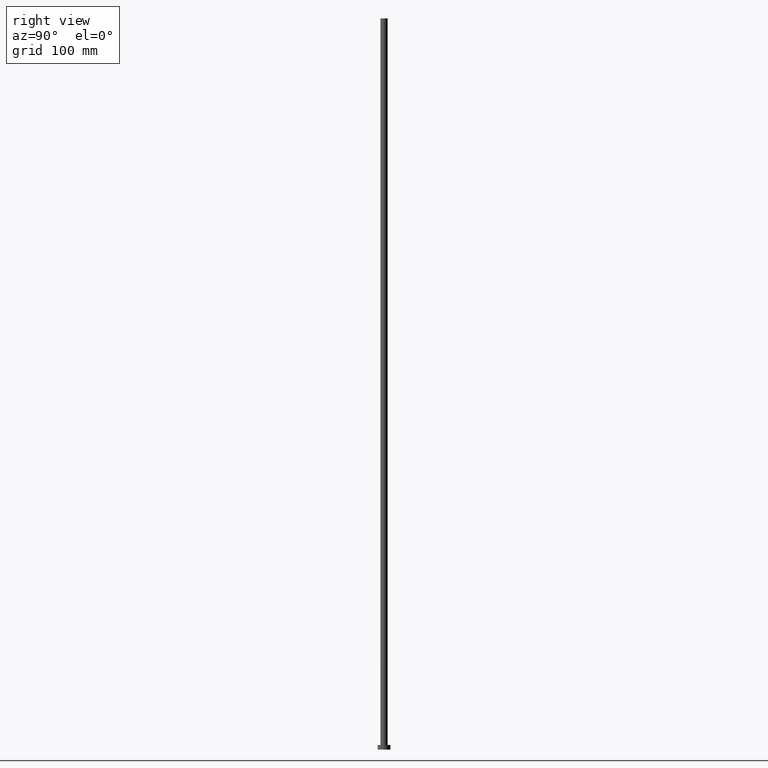
[diagram: clean part render]
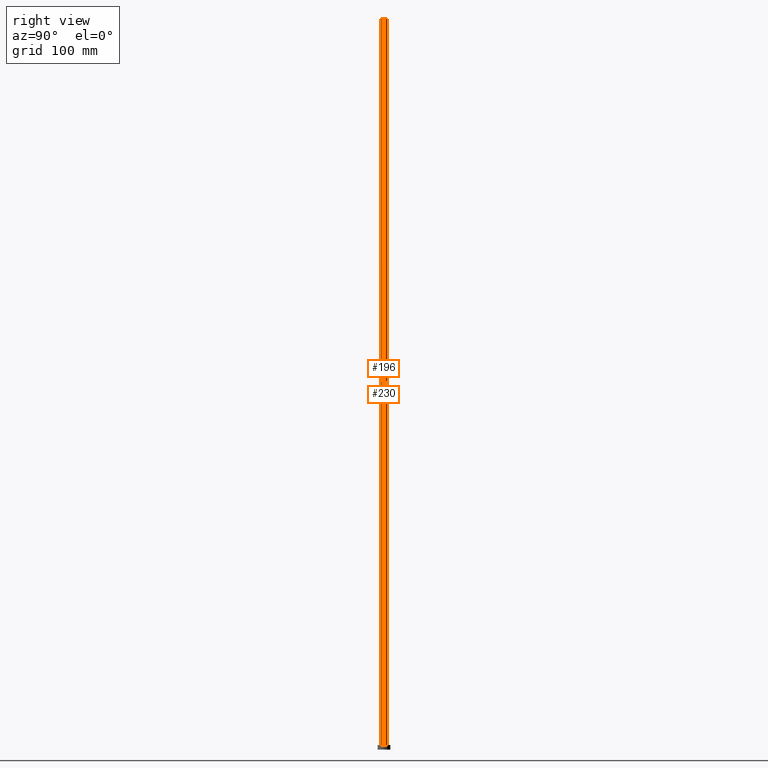
[diagram: same view with one multi-face feature highlighted, each face labeled with its STEP entity id]
A machine part, right view. The highlighted faces form ONE feature: a constant-radius fillet chain: 2 tangent blend faces with common blend radius 4 mm. The faces share edges in the B-rep.
Their STEP definitions:
[1] entity #230 (Cylinder):
#2 = DIRECTION ( 'NONE',  ( -0.000000000000000000, -0.000000000000000000, -1.000000000000000000 ) ) ;
#13 = EDGE_CURVE ( 'NONE', #105, #253, #107, .T. ) ;
#17 = VECTOR ( 'NONE', #125, 1000.000000000000000 ) ;
#18 = CARTESIAN_POINT ( 'NONE',  ( -4.000000000000000000, 0.000000000000000000, 800.0000000000000000 ) ) ;
#26 = CIRCLE ( 'NONE', #86, 4.000000000000000000 ) ;
#35 = CARTESIAN_POINT ( 'NONE',  ( 4.000000000000000000, 4.898587196589412829E-16, 800.0000000000000000 ) ) ;
#39 = CARTESIAN_POINT ( 'NONE',  ( -4.000000000000000000, 0.000000000000000000, 5.000000000000000000 ) ) ;
#40 = DIRECTION ( 'NONE',  ( -0.000000000000000000, -0.000000000000000000, -1.000000000000000000 ) ) ;
#43 = ORIENTED_EDGE ( 'NONE', *, *, #115, .T. ) ;
#54 = EDGE_LOOP ( 'NONE', ( #152, #232, #43, #206 ) ) ;
#56 = CYLINDRICAL_SURFACE ( 'NONE', #227, 4.000000000000000000 ) ;
#63 = DIRECTION ( 'NONE',  ( -1.000000000000000000, 0.000000000000000000, 0.000000000000000000 ) ) ;
#73 = CARTESIAN_POINT ( 'NONE',  ( 0.000000000000000000, 0.000000000000000000, 800.0000000000000000 ) ) ;
#86 = AXIS2_PLACEMENT_3D ( 'NONE', #73, #214, #159 ) ;
#88 = CARTESIAN_POINT ( 'NONE',  ( 0.000000000000000000, 0.000000000000000000, 800.0000000000000000 ) ) ;
#105 = VERTEX_POINT ( 'NONE', #35 ) ;
#107 = LINE ( 'NONE', #240, #146 ) ;
#109 = FACE_OUTER_BOUND ( 'NONE', #54, .T. ) ;
#115 = EDGE_CURVE ( 'NONE', #253, #204, #130, .T. ) ;
#125 = DIRECTION ( 'NONE',  ( -0.000000000000000000, -0.000000000000000000, -1.000000000000000000 ) ) ;
#130 = CIRCLE ( 'NONE', #158, 4.000000000000000000 ) ;
#141 = EDGE_CURVE ( 'NONE', #105, #225, #26, .T. ) ;
#146 = VECTOR ( 'NONE', #2, 1000.000000000000000 ) ;
#152 = ORIENTED_EDGE ( 'NONE', *, *, #141, .F. ) ;
#158 = AXIS2_PLACEMENT_3D ( 'NONE', #224, #245, #182 ) ;
#159 = DIRECTION ( 'NONE',  ( 1.000000000000000000, 0.000000000000000000, 0.000000000000000000 ) ) ;
#171 = CARTESIAN_POINT ( 'NONE',  ( 4.000000000000000000, 4.898587196589412829E-16, 5.000000000000000000 ) ) ;
#182 = DIRECTION ( 'NONE',  ( 1.000000000000000000, 0.000000000000000000, 0.000000000000000000 ) ) ;
#204 = VERTEX_POINT ( 'NONE', #39 ) ;
#206 = ORIENTED_EDGE ( 'NONE', *, *, #233, .F. ) ;
#214 = DIRECTION ( 'NONE',  ( 0.000000000000000000, 0.000000000000000000, 1.000000000000000000 ) ) ;
#220 = CARTESIAN_POINT ( 'NONE',  ( -4.000000000000000000, 0.000000000000000000, 800.0000000000000000 ) ) ;
#223 = LINE ( 'NONE', #18, #17 ) ;
#224 = CARTESIAN_POINT ( 'NONE',  ( 0.000000000000000000, 0.000000000000000000, 5.000000000000000000 ) ) ;
#225 = VERTEX_POINT ( 'NONE', #220 ) ;
#227 = AXIS2_PLACEMENT_3D ( 'NONE', #88, #40, #63 ) ;
#230 = ADVANCED_FACE ( 'NONE', ( #109 ), #56, .T. ) ;
#232 = ORIENTED_EDGE ( 'NONE', *, *, #13, .T. ) ;
#233 = EDGE_CURVE ( 'NONE', #225, #204, #223, .T. ) ;
#240 = CARTESIAN_POINT ( 'NONE',  ( 4.000000000000000000, 4.898587196589412829E-16, 800.0000000000000000 ) ) ;
#245 = DIRECTION ( 'NONE',  ( 0.000000000000000000, 0.000000000000000000, 1.000000000000000000 ) ) ;
#253 = VERTEX_POINT ( 'NONE', #171 ) ;
[2] entity #196 (Cylinder):
#2 = DIRECTION ( 'NONE',  ( -0.000000000000000000, -0.000000000000000000, -1.000000000000000000 ) ) ;
#11 = CARTESIAN_POINT ( 'NONE',  ( 0.000000000000000000, 0.000000000000000000, 800.0000000000000000 ) ) ;
#13 = EDGE_CURVE ( 'NONE', #105, #253, #107, .T. ) ;
#16 = DIRECTION ( 'NONE',  ( -0.000000000000000000, -0.000000000000000000, -1.000000000000000000 ) ) ;
#17 = VECTOR ( 'NONE', #125, 1000.000000000000000 ) ;
#18 = CARTESIAN_POINT ( 'NONE',  ( -4.000000000000000000, 0.000000000000000000, 800.0000000000000000 ) ) ;
#21 = DIRECTION ( 'NONE',  ( -1.000000000000000000, 0.000000000000000000, 0.000000000000000000 ) ) ;
#25 = DIRECTION ( 'NONE',  ( 1.000000000000000000, 0.000000000000000000, 0.000000000000000000 ) ) ;
#32 = CARTESIAN_POINT ( 'NONE',  ( 0.000000000000000000, 0.000000000000000000, 800.0000000000000000 ) ) ;
#35 = CARTESIAN_POINT ( 'NONE',  ( 4.000000000000000000, 4.898587196589412829E-16, 800.0000000000000000 ) ) ;
#39 = CARTESIAN_POINT ( 'NONE',  ( -4.000000000000000000, 0.000000000000000000, 5.000000000000000000 ) ) ;
#42 = DIRECTION ( 'NONE',  ( 0.000000000000000000, 0.000000000000000000, 1.000000000000000000 ) ) ;
#44 = EDGE_CURVE ( 'NONE', #204, #253, #134, .T. ) ;
#45 = ORIENTED_EDGE ( 'NONE', *, *, #190, .F. ) ;
#66 = CARTESIAN_POINT ( 'NONE',  ( 0.000000000000000000, 0.000000000000000000, 5.000000000000000000 ) ) ;
#69 = ORIENTED_EDGE ( 'NONE', *, *, #13, .F. ) ;
#70 = EDGE_LOOP ( 'NONE', ( #69, #45, #177, #197 ) ) ;
#102 = DIRECTION ( 'NONE',  ( 1.000000000000000000, 0.000000000000000000, 0.000000000000000000 ) ) ;
#105 = VERTEX_POINT ( 'NONE', #35 ) ;
#107 = LINE ( 'NONE', #240, #146 ) ;
#118 = FACE_OUTER_BOUND ( 'NONE', #70, .T. ) ;
#125 = DIRECTION ( 'NONE',  ( -0.000000000000000000, -0.000000000000000000, -1.000000000000000000 ) ) ;
#134 = CIRCLE ( 'NONE', #184, 4.000000000000000000 ) ;
#146 = VECTOR ( 'NONE', #2, 1000.000000000000000 ) ;
#171 = CARTESIAN_POINT ( 'NONE',  ( 4.000000000000000000, 4.898587196589412829E-16, 5.000000000000000000 ) ) ;
#177 = ORIENTED_EDGE ( 'NONE', *, *, #233, .T. ) ;
#184 = AXIS2_PLACEMENT_3D ( 'NONE', #66, #42, #25 ) ;
#185 = AXIS2_PLACEMENT_3D ( 'NONE', #32, #16, #21 ) ;
#188 = DIRECTION ( 'NONE',  ( 0.000000000000000000, 0.000000000000000000, 1.000000000000000000 ) ) ;
#190 = EDGE_CURVE ( 'NONE', #225, #105, #231, .T. ) ;
#196 = ADVANCED_FACE ( 'NONE', ( #118 ), #203, .T. ) ;
#197 = ORIENTED_EDGE ( 'NONE', *, *, #44, .T. ) ;
#201 = AXIS2_PLACEMENT_3D ( 'NONE', #11, #188, #102 ) ;
#203 = CYLINDRICAL_SURFACE ( 'NONE', #185, 4.000000000000000000 ) ;
#204 = VERTEX_POINT ( 'NONE', #39 ) ;
#220 = CARTESIAN_POINT ( 'NONE',  ( -4.000000000000000000, 0.000000000000000000, 800.0000000000000000 ) ) ;
#223 = LINE ( 'NONE', #18, #17 ) ;
#225 = VERTEX_POINT ( 'NONE', #220 ) ;
#231 = CIRCLE ( 'NONE', #201, 4.000000000000000000 ) ;
#233 = EDGE_CURVE ( 'NONE', #225, #204, #223, .T. ) ;
#240 = CARTESIAN_POINT ( 'NONE',  ( 4.000000000000000000, 4.898587196589412829E-16, 800.0000000000000000 ) ) ;
#253 = VERTEX_POINT ( 'NONE', #171 ) ;